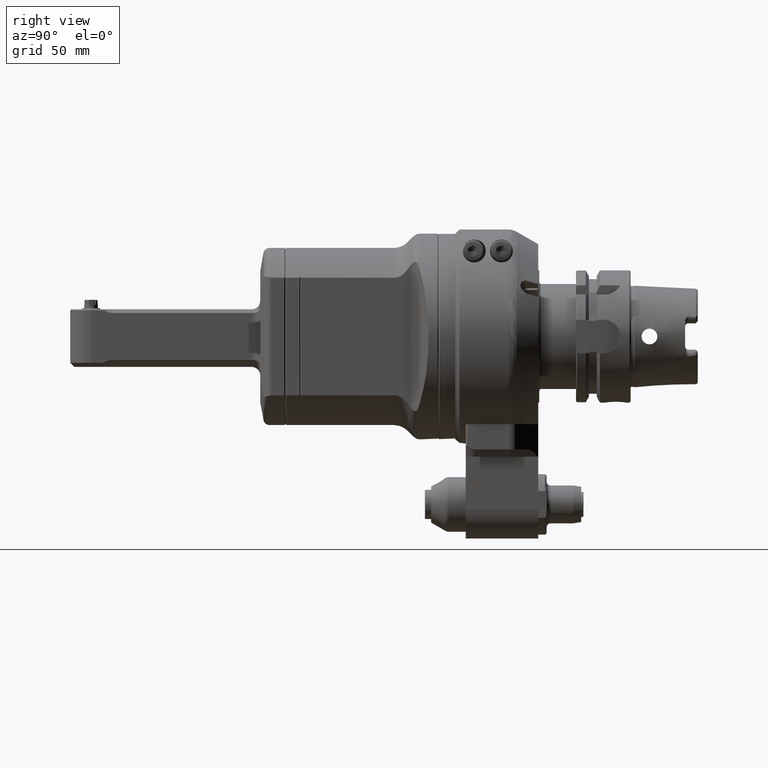
[diagram: clean part render]
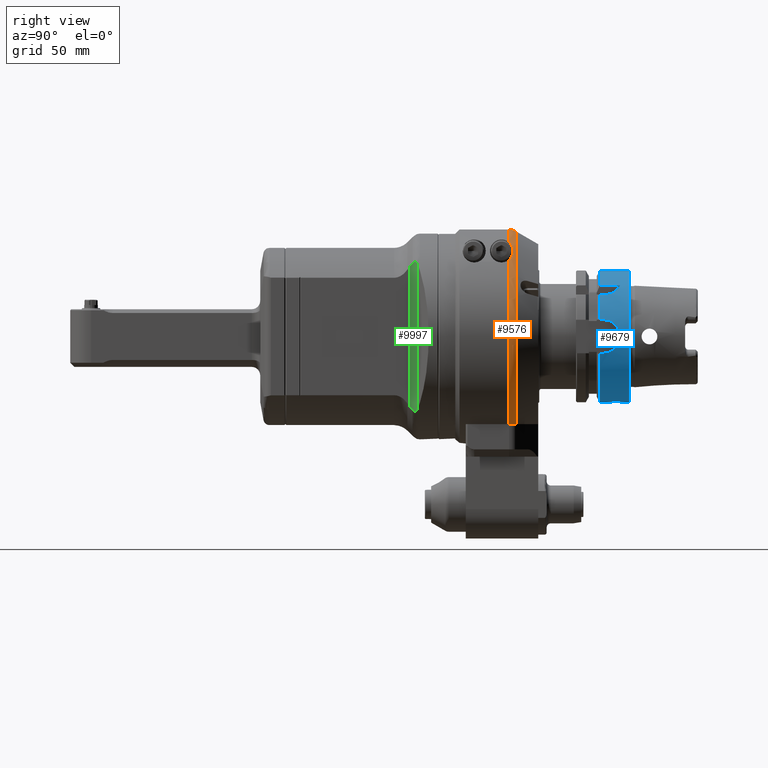
[diagram: same view with three faces highlighted in distinct colors, each labeled with its STEP entity id]
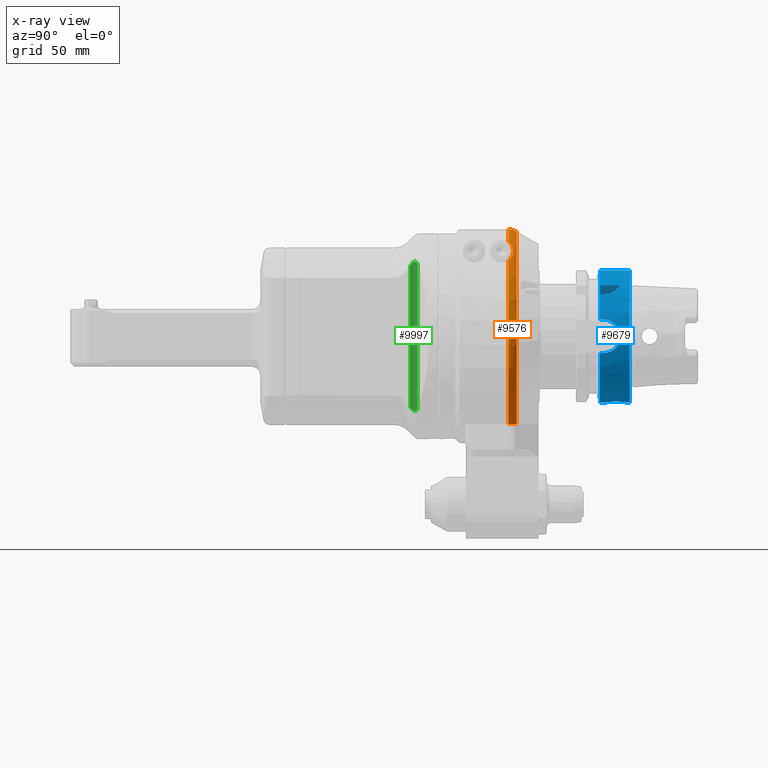
[diagram: x-ray of the same camera — body ghosted, the three highlighted faces saturated]
A machine part, right view with three faces highlighted in distinct colors.
The next image is the same camera in x-ray (body ghosted, the three faces saturated) — at least one of them is partly hidden behind the body in this view.
Their STEP definitions:

[orange] entity #9576 — the highlighted toroidal blend (fillet) surface has major radius 43 mm and minor (blend) radius 8 mm.
#251=TOROIDAL_SURFACE('',#10296,43.,8.);
#898=FACE_OUTER_BOUND('',#1478,.T.);
#1478=EDGE_LOOP('',(#6650,#6651,#6652,#6653,#6654,#6655));
#2095=CIRCLE('',#10250,51.);
#2096=CIRCLE('',#10251,51.);
#2117=CIRCLE('',#10293,49.92820323028);
#2545=B_SPLINE_CURVE_WITH_KNOTS('',3,(#14117,#14118,#14119,#14120,#14121,
#14122,#14123,#14124,#14125,#14126),.UNSPECIFIED.,.F.,.F.,(4,2,2,2,4),(-9.68559804021147,
-9.63577634006454,-9.4843525606202,-9.37005770955715,-9.2557628584941),
 .UNSPECIFIED.);
#2560=B_SPLINE_CURVE_WITH_KNOTS('',3,(#14436,#14437,#14438,#14439,#14440,
#14441,#14442,#14443),.UNSPECIFIED.,.F.,.F.,(4,2,2,4),(4.34441023881693,
4.44441523838835,4.59248867498487,4.74056211158139),.UNSPECIFIED.);
#2563=B_SPLINE_CURVE_WITH_KNOTS('',3,(#14475,#14476,#14477,#14478,#14479,
#14480,#14481,#14482,#14483,#14484,#14485,#14486,#14487,#14488,#14489,#14490),
 .UNSPECIFIED.,.F.,.F.,(4,3,3,3,3,4),(-9.34472443709596,-9.15576581563724,
-8.53592281537643,-8.19749167718029,-7.91960616501296,-7.85473194545352),
 .UNSPECIFIED.);
#4079=VERTEX_POINT('',#14082);
#4089=VERTEX_POINT('',#14113);
#4094=VERTEX_POINT('',#14137);
#4096=VERTEX_POINT('',#14146);
#4097=VERTEX_POINT('',#14173);
#4137=VERTEX_POINT('',#14424);
#5047=EDGE_CURVE('',#4089,#4079,#2545,.T.);
#5053=EDGE_CURVE('',#4094,#4079,#2095,.T.);
#5056=EDGE_CURVE('',#4097,#4096,#2096,.T.);
#5119=EDGE_CURVE('',#4137,#4097,#2560,.T.);
#5122=EDGE_CURVE('',#4089,#4137,#2117,.T.);
#5127=EDGE_CURVE('',#4096,#4094,#2563,.T.);
#6650=ORIENTED_EDGE('',*,*,#5122,.T.);
#6651=ORIENTED_EDGE('',*,*,#5119,.T.);
#6652=ORIENTED_EDGE('',*,*,#5056,.T.);
#6653=ORIENTED_EDGE('',*,*,#5127,.T.);
#6654=ORIENTED_EDGE('',*,*,#5053,.T.);
#6655=ORIENTED_EDGE('',*,*,#5047,.F.);
#9576=ADVANCED_FACE('',(#898),#251,.T.);
#10250=AXIS2_PLACEMENT_3D('',#14138,#11324,#11325);
#10251=AXIS2_PLACEMENT_3D('',#14174,#11326,#11327);
#10293=AXIS2_PLACEMENT_3D('',#14449,#11440,#11441);
#10296=AXIS2_PLACEMENT_3D('',#14474,#11446,#11447);
#11324=DIRECTION('center_axis',(0.,1.,0.));
#11325=DIRECTION('ref_axis',(0.702983781088798,0.,0.711205879844998));
#11326=DIRECTION('center_axis',(0.,1.,0.));
#11327=DIRECTION('ref_axis',(0.0294117647058804,0.,0.999567380468613));
#11440=DIRECTION('center_axis',(0.,-1.,0.));
#11441=DIRECTION('ref_axis',(0.548423503116412,0.,-0.836200730225418));
#11446=DIRECTION('center_axis',(0.,-1.,0.));
#11447=DIRECTION('ref_axis',(0.,0.,1.));
#14082=CARTESIAN_POINT('',(29.29057015492,25.23205080757,-41.75));
#14113=CARTESIAN_POINT('',(27.38180011986,29.23205080757,-41.75));
#14117=CARTESIAN_POINT('Ctrl Pts',(27.3818001198576,29.2320508075675,-41.75));
#14118=CARTESIAN_POINT('Ctrl Pts',(27.5118698927609,29.1084978721799,-41.75));
#14119=CARTESIAN_POINT('Ctrl Pts',(27.63883358715,28.9796012581369,-41.75));
#14120=CARTESIAN_POINT('Ctrl Pts',(28.1311886381695,28.4412749376929,-41.75));
#14121=CARTESIAN_POINT('Ctrl Pts',(28.4521983127449,27.9932266664163,-41.75));
#14122=CARTESIAN_POINT('Ctrl Pts',(28.8694287521605,27.2119237728328,-41.75));
#14123=CARTESIAN_POINT('Ctrl Pts',(29.0288082766981,26.8258618631201,-41.75));
#14124=CARTESIAN_POINT('Ctrl Pts',(29.2396724058848,26.0264941442551,-41.75));
#14125=CARTESIAN_POINT('Ctrl Pts',(29.290570154915,25.6130336444468,-41.75));
#14126=CARTESIAN_POINT('Ctrl Pts',(29.290570154915,25.23205080757,-41.75));
#14137=CARTESIAN_POINT('',(35.85217283553,25.23205080757,36.27149987209));
#14138=CARTESIAN_POINT('Origin',(0.,25.23205080757,0.));
#14146=CARTESIAN_POINT('',(23.67505525733,25.23205080757,45.1718026933));
#14173=CARTESIAN_POINT('',(1.499999980309,25.2320508231036,50.9779364044793));
#14174=CARTESIAN_POINT('Origin',(0.,25.23205080757,0.));
#14424=CARTESIAN_POINT('',(1.50000006858959,29.2320587089715,49.9056612221311));
#14436=CARTESIAN_POINT('Ctrl Pts',(1.5,29.2320587100669,49.9056612240274));
#14437=CARTESIAN_POINT('Ctrl Pts',(1.5,28.9199628642827,50.0859316928166));
#14438=CARTESIAN_POINT('Ctrl Pts',(1.5,28.6009646113261,50.2413262775005));
#14439=CARTESIAN_POINT('Ctrl Pts',(1.5,27.8370100654999,50.5578441661684));
#14440=CARTESIAN_POINT('Ctrl Pts',(1.5,27.3203684112507,50.7191785472564));
#14441=CARTESIAN_POINT('Ctrl Pts',(1.5,26.2646778846743,50.9292248693063));
#14442=CARTESIAN_POINT('Ctrl Pts',(1.5,25.7256289314938,50.9779364038993));
#14443=CARTESIAN_POINT('Ctrl Pts',(1.5,25.23205080757,50.9779364038993));
#14449=CARTESIAN_POINT('Origin',(0.,29.23205080757,0.));
#14474=CARTESIAN_POINT('Origin',(0.,25.23205080757,0.));
#14475=CARTESIAN_POINT('Ctrl Pts',(23.6750552573282,25.2320508075727,45.1718026933004));
#14476=CARTESIAN_POINT('Ctrl Pts',(24.1931832058652,25.6059523067419,44.9002459459358));
#14477=CARTESIAN_POINT('Ctrl Pts',(24.7188029255043,25.9420066961405,44.5838219388063));
#14478=CARTESIAN_POINT('Ctrl Pts',(25.2564932996337,26.2317635357589,44.2347948006083));
#14479=CARTESIAN_POINT('Ctrl Pts',(27.0202848225547,27.1822560162222,43.0898773216229));
#14480=CARTESIAN_POINT('Ctrl Pts',(28.8794189915696,27.59137352447,41.6682943531785));
#14481=CARTESIAN_POINT('Ctrl Pts',(30.7375607372457,27.4830876369281,40.2906640836256));
#14482=CARTESIAN_POINT('Ctrl Pts',(31.7520967175735,27.4239640908754,39.5384849351282));
#14483=CARTESIAN_POINT('Ctrl Pts',(32.792654695621,27.2001167152264,38.766612129063));
#14484=CARTESIAN_POINT('Ctrl Pts',(33.6844936512154,26.8239051275729,38.0796938038265));
#14485=CARTESIAN_POINT('Ctrl Pts',(34.4167818391968,26.5149981213335,37.5156657665635));
#14486=CARTESIAN_POINT('Ctrl Pts',(35.0318289883247,26.1276341386836,37.0238735560993));
#14487=CARTESIAN_POINT('Ctrl Pts',(35.5266834858289,25.6160859153085,36.5775081079162));
#14488=CARTESIAN_POINT('Ctrl Pts',(35.6422105569262,25.4966615829652,36.4733011276266));
#14489=CARTESIAN_POINT('Ctrl Pts',(35.7518651548587,25.3685659302862,36.370647917166));
#14490=CARTESIAN_POINT('Ctrl Pts',(35.8521728355289,25.2320508075659,36.2714998720946));

[blue] entity #9679 — the highlighted cylindrical surface (bore or boss wall) has radius 31.5 mm, axis along (0, 1, 0).
#1001=FACE_OUTER_BOUND('',#1591,.T.);
#1591=EDGE_LOOP('',(#7187,#7188,#7189,#7190,#7191,#7192,#7193,#7194,#7195,
#7196,#7197,#7198,#7199,#7200,#7201,#7202,#7203,#7204,#7205,#7206,#7207,
#7208,#7209,#7210,#7211));
#2183=CIRCLE('',#10463,31.5);
#2184=CIRCLE('',#10464,31.5);
#2185=CIRCLE('',#10465,31.5);
#2186=CIRCLE('',#10466,31.5);
#2187=CIRCLE('',#10467,31.5);
#2188=CIRCLE('',#10468,31.5);
#2189=CIRCLE('',#10469,31.5);
#2570=B_SPLINE_CURVE_WITH_KNOTS('',3,(#15217,#15218,#15219,#15220,#15221,
#15222,#15223,#15224,#15225,#15226,#15227,#15228,#15229,#15230,#15231,#15232,
#15233,#15234),.UNSPECIFIED.,.F.,.F.,(4,2,2,2,2,2,2,2,4),(0.,0.302805879979317,
0.605611759958634,0.908372461246501,1.21113316253437,1.51389386382223,1.8166545651101,
2.11946044508942,2.42226632506873),.UNSPECIFIED.);
#2572=B_SPLINE_CURVE_WITH_KNOTS('',3,(#15258,#15259,#15260,#15261,#15262,
#15263,#15264,#15265,#15266,#15267),.UNSPECIFIED.,.F.,.F.,(4,2,2,2,4),(-0.754746505200737,
-0.56606194688798,-0.377377388575223,-0.188688694287612,0.),
 .UNSPECIFIED.);
#2573=B_SPLINE_CURVE_WITH_KNOTS('',3,(#15269,#15270,#15271,#15272,#15273,
#15274,#15275,#15276,#15277,#15278),.UNSPECIFIED.,.F.,.F.,(4,2,2,2,4),(0.,
0.188688694287612,0.377377388575223,0.56606194688798,0.754746505200737),
 .UNSPECIFIED.);
#2574=B_SPLINE_CURVE_WITH_KNOTS('',3,(#15286,#15287,#15288,#15289,#15290,
#15291,#15292,#15293,#15294,#15295),.UNSPECIFIED.,.F.,.F.,(4,2,2,2,4),(1.20927420824098,
1.5131742975437,1.81707438684643,2.12000449915965,2.42293461147287),
 .UNSPECIFIED.);
#2575=B_SPLINE_CURVE_WITH_KNOTS('',3,(#15299,#15300,#15301,#15302,#15303,
#15304,#15305,#15306,#15307,#15308),.UNSPECIFIED.,.F.,.F.,(4,2,2,2,4),(0.,
0.302930112313218,0.605860224626436,0.909760313929164,1.21366040323189),
 .UNSPECIFIED.);
#2576=B_SPLINE_CURVE_WITH_KNOTS('',3,(#15316,#15317,#15318,#15319,#15320,
#15321,#15322,#15323,#15324,#15325,#15326,#15327),.UNSPECIFIED.,.F.,.F.,
(4,2,2,2,2,4),(-6.05874474967023,-5.78688497894,-5.51502520820976,-5.37221974243489,
-5.22941427666002,-5.09609706558246),.UNSPECIFIED.);
#2577=B_SPLINE_CURVE_WITH_KNOTS('',3,(#15333,#15334,#15335,#15336,#15337,
#15338,#15339,#15340,#15341,#15342),.UNSPECIFIED.,.F.,.F.,(4,2,2,2,4),(0.754746505200737,
0.943431063513494,1.13211562182625,1.32080431611386,1.50949301040147),
 .UNSPECIFIED.);
#2578=B_SPLINE_CURVE_WITH_KNOTS('',3,(#15343,#15344,#15345,#15346,#15347,
#15348,#15349,#15350,#15351,#15352),.UNSPECIFIED.,.F.,.F.,(4,2,2,2,4),(-1.50949301040147,
-1.32080431611386,-1.13211562182625,-0.943431063513494,-0.754746505200737),
 .UNSPECIFIED.);
#2898=LINE('',#15214,#3570);
#2900=LINE('',#15238,#3572);
#2902=LINE('',#15256,#3574);
#2903=LINE('',#15280,#3575);
#2904=LINE('',#15284,#3576);
#2905=LINE('',#15310,#3577);
#2906=LINE('',#15314,#3578);
#2907=LINE('',#15329,#3579);
#3570=VECTOR('',#11903,1.62249829666703);
#3572=VECTOR('',#11909,1.62249829672203);
#3574=VECTOR('',#11915,31.5);
#3575=VECTOR('',#11916,31.5);
#3576=VECTOR('',#11919,1.62249751393706);
#3577=VECTOR('',#11922,1.62249751393706);
#3578=VECTOR('',#11925,10.);
#3579=VECTOR('',#11926,10.);
#4313=VERTEX_POINT('',#15199);
#4315=VERTEX_POINT('',#15203);
#4316=VERTEX_POINT('',#15216);
#4317=VERTEX_POINT('',#15237);
#4319=VERTEX_POINT('',#15252);
#4320=VERTEX_POINT('',#15253);
#4321=VERTEX_POINT('',#15255);
#4322=VERTEX_POINT('',#15257);
#4323=VERTEX_POINT('',#15268);
#4324=VERTEX_POINT('',#15279);
#4325=VERTEX_POINT('',#15281);
#4326=VERTEX_POINT('',#15283);
#4327=VERTEX_POINT('',#15285);
#4328=VERTEX_POINT('',#15296);
#4329=VERTEX_POINT('',#15298);
#4330=VERTEX_POINT('',#15309);
#4331=VERTEX_POINT('',#15311);
#4332=VERTEX_POINT('',#15313);
#4333=VERTEX_POINT('',#15315);
#4334=VERTEX_POINT('',#15328);
#4335=VERTEX_POINT('',#15332);
#5385=EDGE_CURVE('',#4313,#4315,#2898,.T.);
#5386=EDGE_CURVE('',#4313,#4316,#2570,.T.);
#5388=EDGE_CURVE('',#4317,#4316,#2900,.T.);
#5391=EDGE_CURVE('',#4319,#4320,#2183,.T.);
#5392=EDGE_CURVE('',#4319,#4321,#2902,.T.);
#5393=EDGE_CURVE('',#4321,#4322,#2572,.T.);
#5394=EDGE_CURVE('',#4322,#4323,#2573,.T.);
#5395=EDGE_CURVE('',#4323,#4324,#2903,.T.);
#5396=EDGE_CURVE('',#4325,#4324,#2184,.T.);
#5397=EDGE_CURVE('',#4325,#4326,#2904,.T.);
#5398=EDGE_CURVE('',#4327,#4326,#2574,.T.);
#5399=EDGE_CURVE('',#4328,#4327,#2185,.T.);
#5400=EDGE_CURVE('',#4329,#4328,#2575,.T.);
#5401=EDGE_CURVE('',#4329,#4330,#2905,.T.);
#5402=EDGE_CURVE('',#4331,#4330,#2186,.T.);
#5403=EDGE_CURVE('',#4331,#4332,#2906,.T.);
#5404=EDGE_CURVE('',#4333,#4332,#2576,.T.);
#5405=EDGE_CURVE('',#4333,#4334,#2907,.T.);
#5406=EDGE_CURVE('',#4317,#4334,#2187,.T.);
#5407=EDGE_CURVE('',#4324,#4315,#2188,.T.);
#5408=EDGE_CURVE('',#4323,#4335,#2577,.T.);
#5409=EDGE_CURVE('',#4335,#4321,#2578,.T.);
#5410=EDGE_CURVE('',#4320,#4319,#2189,.T.);
#7187=ORIENTED_EDGE('',*,*,#5391,.F.);
#7188=ORIENTED_EDGE('',*,*,#5392,.T.);
#7189=ORIENTED_EDGE('',*,*,#5393,.T.);
#7190=ORIENTED_EDGE('',*,*,#5394,.T.);
#7191=ORIENTED_EDGE('',*,*,#5395,.T.);
#7192=ORIENTED_EDGE('',*,*,#5396,.F.);
#7193=ORIENTED_EDGE('',*,*,#5397,.T.);
#7194=ORIENTED_EDGE('',*,*,#5398,.F.);
#7195=ORIENTED_EDGE('',*,*,#5399,.F.);
#7196=ORIENTED_EDGE('',*,*,#5400,.F.);
#7197=ORIENTED_EDGE('',*,*,#5401,.T.);
#7198=ORIENTED_EDGE('',*,*,#5402,.F.);
#7199=ORIENTED_EDGE('',*,*,#5403,.T.);
#7200=ORIENTED_EDGE('',*,*,#5404,.F.);
#7201=ORIENTED_EDGE('',*,*,#5405,.T.);
#7202=ORIENTED_EDGE('',*,*,#5406,.F.);
#7203=ORIENTED_EDGE('',*,*,#5388,.T.);
#7204=ORIENTED_EDGE('',*,*,#5386,.F.);
#7205=ORIENTED_EDGE('',*,*,#5385,.T.);
#7206=ORIENTED_EDGE('',*,*,#5407,.F.);
#7207=ORIENTED_EDGE('',*,*,#5395,.F.);
#7208=ORIENTED_EDGE('',*,*,#5408,.T.);
#7209=ORIENTED_EDGE('',*,*,#5409,.T.);
#7210=ORIENTED_EDGE('',*,*,#5392,.F.);
#7211=ORIENTED_EDGE('',*,*,#5410,.F.);
#9430=CYLINDRICAL_SURFACE('',#10462,31.5);
#9679=ADVANCED_FACE('',(#1001),#9430,.T.);
#10462=AXIS2_PLACEMENT_3D('',#15251,#11911,#11912);
#10463=AXIS2_PLACEMENT_3D('',#15254,#11913,#11914);
#10464=AXIS2_PLACEMENT_3D('',#15282,#11917,#11918);
#10465=AXIS2_PLACEMENT_3D('',#15297,#11920,#11921);
#10466=AXIS2_PLACEMENT_3D('',#15312,#11923,#11924);
#10467=AXIS2_PLACEMENT_3D('',#15330,#11927,#11928);
#10468=AXIS2_PLACEMENT_3D('',#15331,#11929,#11930);
#10469=AXIS2_PLACEMENT_3D('',#15353,#11931,#11932);
#11903=DIRECTION('',(-4.68592609280692E-8,-0.999999999999983,-1.78458808967197E-7));
#11909=DIRECTION('',(4.68583040466692E-8,0.999999999999983,-1.78455147855797E-7));
#11911=DIRECTION('center_axis',(0.,1.,0.));
#11912=DIRECTION('ref_axis',(0.,0.,1.));
#11913=DIRECTION('center_axis',(0.,1.,0.));
#11914=DIRECTION('ref_axis',(-0.707106781186547,0.,-0.707106781186547));
#11915=DIRECTION('',(0.,-1.,0.));
#11916=DIRECTION('',(0.,-1.,0.));
#11917=DIRECTION('center_axis',(0.,-1.,0.));
#11918=DIRECTION('ref_axis',(-0.958314847499905,0.,-0.285714285714301));
#11919=DIRECTION('',(-7.77212104206971E-8,0.999999999999963,2.6068480881039E-7));
#11920=DIRECTION('center_axis',(0.,-1.,0.));
#11921=DIRECTION('ref_axis',(-0.999495967709915,0.,0.0317460317460305));
#11922=DIRECTION('',(7.77212082310371E-8,-0.999999999999963,2.6068480005169E-7));
#11923=DIRECTION('center_axis',(0.,-1.,0.));
#11924=DIRECTION('ref_axis',(0.634920634920608,0.,0.77257736658021));
#11925=DIRECTION('',(0.,1.,0.));
#11926=DIRECTION('',(0.,-1.,0.));
#11927=DIRECTION('center_axis',(0.,-1.,0.));
#11928=DIRECTION('ref_axis',(0.967212554703614,0.,0.253968253968304));
#11929=DIRECTION('center_axis',(0.,-1.,0.));
#11930=DIRECTION('ref_axis',(-0.958314847499905,0.,-0.285714285714301));
#11931=DIRECTION('center_axis',(0.,1.,0.));
#11932=DIRECTION('ref_axis',(-0.707106781186547,0.,-0.707106781186547));
#15199=CARTESIAN_POINT('',(30.46719547316,70.5,-8.));
#15203=CARTESIAN_POINT('',(30.4671953763624,68.8774990892394,-8.00000043157662));
#15214=CARTESIAN_POINT('',(30.46719547316,70.5,-8.));
#15216=CARTESIAN_POINT('',(30.46719547316,70.5,8.));
#15217=CARTESIAN_POINT('Ctrl Pts',(30.4671954731643,70.5,-8.));
#15218=CARTESIAN_POINT('Ctrl Pts',(30.4671954731643,71.5093529332644,-8.));
#15219=CARTESIAN_POINT('Ctrl Pts',(30.5225803085525,72.5827924069832,-7.79737202490167));
#15220=CARTESIAN_POINT('Ctrl Pts',(30.719895002943,74.552416006682,-6.97961067526075));
#15221=CARTESIAN_POINT('Ctrl Pts',(30.8586830127239,75.4490067762956,-6.36470172268915));
#15222=CARTESIAN_POINT('Ctrl Pts',(31.1170994373341,76.8645961117195,-4.94911238726522));
#15223=CARTESIAN_POINT('Ctrl Pts',(31.2539072689014,77.4795873698469,-4.05247770930662));
#15224=CARTESIAN_POINT('Ctrl Pts',(31.4466478906396,78.297408851126,-2.08269813865027));
#15225=CARTESIAN_POINT('Ctrl Pts',(31.5,78.5,-1.00920233762622));
#15226=CARTESIAN_POINT('Ctrl Pts',(31.5,78.5,1.00920233762622));
#15227=CARTESIAN_POINT('Ctrl Pts',(31.4466478906396,78.297408851126,2.08269813865026));
#15228=CARTESIAN_POINT('Ctrl Pts',(31.2539072689014,77.4795873698469,4.05247770930661));
#15229=CARTESIAN_POINT('Ctrl Pts',(31.1170994373341,76.8645961117195,4.94911238726522));
#15230=CARTESIAN_POINT('Ctrl Pts',(30.8586830127239,75.4490067762956,6.36470172268915));
#15231=CARTESIAN_POINT('Ctrl Pts',(30.719895002943,74.552416006682,6.97961067526075));
#15232=CARTESIAN_POINT('Ctrl Pts',(30.5225803085525,72.5827924069832,7.79737202490167));
#15233=CARTESIAN_POINT('Ctrl Pts',(30.4671954731643,71.5093529332644,8.));
#15234=CARTESIAN_POINT('Ctrl Pts',(30.4671954731643,70.5,8.));
#15237=CARTESIAN_POINT('',(30.467195376368,68.87749908924,8.00000043156748));
#15238=CARTESIAN_POINT('',(30.46719539714,68.87750170328,8.000000289543));
#15251=CARTESIAN_POINT('Origin',(1.347113091385E-14,55.4,0.));
#15252=CARTESIAN_POINT('',(9.61349349653584E-15,83.,-31.5));
#15253=CARTESIAN_POINT('',(9.61349349653584E-15,83.,31.5));
#15254=CARTESIAN_POINT('Origin',(1.347113091385E-14,83.,0.));
#15255=CARTESIAN_POINT('',(1.18150295912142E-14,81.5,-31.5));
#15256=CARTESIAN_POINT('',(9.61349349653584E-15,55.4,-31.5));
#15257=CARTESIAN_POINT('',(-4.99999999999998,76.5,-31.100643080168));
#15258=CARTESIAN_POINT('Ctrl Pts',(1.38777878078145E-14,81.5,-31.5));
#15259=CARTESIAN_POINT('Ctrl Pts',(-0.628948527709176,81.5,-31.5));
#15260=CARTESIAN_POINT('Ctrl Pts',(-1.29909839144707,81.3740869887941,-31.4792463697936));
#15261=CARTESIAN_POINT('Ctrl Pts',(-2.53068619255778,80.8634857465146,-31.4042391414288));
#15262=CARTESIAN_POINT('Ctrl Pts',(-3.09221190413347,80.478855907732,-31.3510329557602));
#15263=CARTESIAN_POINT('Ctrl Pts',(-3.9788656253722,79.5922021864933,-31.2508828501623));
#15264=CARTESIAN_POINT('Ctrl Pts',(-4.36348784122735,79.0306806569904,-31.1973810209855));
#15265=CARTESIAN_POINT('Ctrl Pts',(-4.87408354368812,77.799107184208,-31.1216953112949));
#15266=CARTESIAN_POINT('Ctrl Pts',(-4.99999999999998,77.1289623142921,-31.100643080168));
#15267=CARTESIAN_POINT('Ctrl Pts',(-4.99999999999998,76.5,-31.100643080168));
#15268=CARTESIAN_POINT('',(1.14680848960189E-14,71.5,-31.5));
#15269=CARTESIAN_POINT('Ctrl Pts',(-4.99999999999999,76.5,-31.100643080168));
#15270=CARTESIAN_POINT('Ctrl Pts',(-4.99999999999999,75.871037685708,-31.100643080168));
#15271=CARTESIAN_POINT('Ctrl Pts',(-4.87408354368812,75.200892815792,-31.1216953112949));
#15272=CARTESIAN_POINT('Ctrl Pts',(-4.36348784122735,73.9693193430096,-31.1973810209855));
#15273=CARTESIAN_POINT('Ctrl Pts',(-3.9788656253722,73.4077978135067,-31.2508828501623));
#15274=CARTESIAN_POINT('Ctrl Pts',(-3.09221190413347,72.521144092268,-31.3510329557602));
#15275=CARTESIAN_POINT('Ctrl Pts',(-2.53068619255778,72.1365142534854,-31.4042391414288));
#15276=CARTESIAN_POINT('Ctrl Pts',(-1.29909839144707,71.6259130112059,-31.4792463697936));
#15277=CARTESIAN_POINT('Ctrl Pts',(-0.628948527709176,71.5,-31.5));
#15278=CARTESIAN_POINT('Ctrl Pts',(1.36002320516582E-14,71.5,-31.5));
#15279=CARTESIAN_POINT('',(9.61349349653584E-15,68.87749907476,-31.5));
#15280=CARTESIAN_POINT('',(9.61349349653584E-15,55.4,-31.5));
#15281=CARTESIAN_POINT('',(-30.1869175352187,68.8774990975238,-9.00000062995455));
#15282=CARTESIAN_POINT('Origin',(1.347113091385E-14,68.87749907476,0.));
#15283=CARTESIAN_POINT('',(-30.18691769625,70.5,-9.));
#15284=CARTESIAN_POINT('',(-30.18691757014,68.87750248606,-9.00000042296));
#15285=CARTESIAN_POINT('',(-31.48412298286,78.5,-1.));
#15286=CARTESIAN_POINT('Ctrl Pts',(-31.4841229828623,78.5,-1.));
#15287=CARTESIAN_POINT('Ctrl Pts',(-31.4519642432536,78.5,-2.01248971281588));
#15288=CARTESIAN_POINT('Ctrl Pts',(-31.3640631381934,78.2962266693542,-3.08756640398172));
#15289=CARTESIAN_POINT('Ctrl Pts',(-31.1070804719497,77.4762989744496,-5.05836608044729));
#15290=CARTESIAN_POINT('Ctrl Pts',(-30.9405445582003,76.8604425465894,-5.95454409907419));
#15291=CARTESIAN_POINT('Ctrl Pts',(-30.6348764237341,75.4452750671682,-7.3671500962837));
#15292=CARTESIAN_POINT('Ctrl Pts',(-30.4752177477269,74.5503357784117,-7.98063403850822));
#15293=CARTESIAN_POINT('Ctrl Pts',(-30.2496070227108,72.5828259339463,-8.79719825889174));
#15294=CARTESIAN_POINT('Ctrl Pts',(-30.1869176962471,71.5097670410441,-9.));
#15295=CARTESIAN_POINT('Ctrl Pts',(-30.1869176962471,70.5,-9.));
#15296=CARTESIAN_POINT('',(-31.48412298286,78.5,1.));
#15297=CARTESIAN_POINT('Origin',(1.347113091385E-14,78.5,0.));
#15298=CARTESIAN_POINT('',(-30.18691769625,70.5,9.));
#15299=CARTESIAN_POINT('Ctrl Pts',(-30.1869176962471,70.5,9.));
#15300=CARTESIAN_POINT('Ctrl Pts',(-30.1869176962471,71.5097670410441,9.));
#15301=CARTESIAN_POINT('Ctrl Pts',(-30.2496070227108,72.5828259339462,8.79719825889175));
#15302=CARTESIAN_POINT('Ctrl Pts',(-30.4752177477269,74.5503357784117,7.98063403850822));
#15303=CARTESIAN_POINT('Ctrl Pts',(-30.6348764237341,75.4452750671682,7.36715009628369));
#15304=CARTESIAN_POINT('Ctrl Pts',(-30.9405445582003,76.8604425465894,5.95454409907418));
#15305=CARTESIAN_POINT('Ctrl Pts',(-31.1070804719497,77.4762989744496,5.05836608044729));
#15306=CARTESIAN_POINT('Ctrl Pts',(-31.3640631381934,78.2962266693542,3.08756640398171));
#15307=CARTESIAN_POINT('Ctrl Pts',(-31.4519642432536,78.5,2.01248971281587));
#15308=CARTESIAN_POINT('Ctrl Pts',(-31.4841229828623,78.5,0.999999999999998));
#15309=CARTESIAN_POINT('',(-30.1869175352224,68.8774990975246,9.00000062995427));
#15310=CARTESIAN_POINT('',(-30.18691769625,70.5,9.));
#15311=CARTESIAN_POINT('',(19.9999999996528,68.8774990752991,24.3361870480634));
#15312=CARTESIAN_POINT('Origin',(1.347113091385E-14,68.87749907476,0.));
#15313=CARTESIAN_POINT('',(20.,78.5,24.33618704728));
#15314=CARTESIAN_POINT('',(20.,55.4,24.3361870472759));
#15315=CARTESIAN_POINT('',(24.33618704728,71.38828609634,20.));
#15316=CARTESIAN_POINT('Ctrl Pts',(24.3361870472759,71.38828609634,20.));
#15317=CARTESIAN_POINT('Ctrl Pts',(24.3361870472759,72.2944853321075,20.));
#15318=CARTESIAN_POINT('Ctrl Pts',(24.2030210294625,73.2485903152513,20.1651590264306));
#15319=CARTESIAN_POINT('Ctrl Pts',(23.6671236275841,74.9776040258777,20.791516259953));
#15320=CARTESIAN_POINT('Ctrl Pts',(23.2621247516531,75.7527099808559,21.2502254786035));
#15321=CARTESIAN_POINT('Ctrl Pts',(22.5572734459409,76.6838450530083,21.9896152318442));
#15322=CARTESIAN_POINT('Ctrl Pts',(22.2670351257637,77.0017410524538,22.2850045135992));
#15323=CARTESIAN_POINT('Ctrl Pts',(21.6380881931739,77.5626809031602,22.8961878826721));
#15324=CARTESIAN_POINT('Ctrl Pts',(21.2994440978138,77.8063698226692,23.211456037969));
#15325=CARTESIAN_POINT('Ctrl Pts',(20.6739705995174,78.1861703961874,23.7697454006925));
#15326=CARTESIAN_POINT('Ctrl Pts',(20.3466742532987,78.3532229798908,24.0512827172548));
#15327=CARTESIAN_POINT('Ctrl Pts',(19.9999999999972,78.499999999997,24.3361870472782));
#15328=CARTESIAN_POINT('',(24.3361870480639,68.8774990752995,19.9999999996526));
#15329=CARTESIAN_POINT('',(24.3361870472759,55.4,20.));
#15330=CARTESIAN_POINT('Origin',(1.347113091385E-14,68.87749907476,0.));
#15331=CARTESIAN_POINT('Origin',(1.347113091385E-14,68.87749907476,0.));
#15332=CARTESIAN_POINT('',(5.00000000000001,76.5,-31.10064308017));
#15333=CARTESIAN_POINT('Ctrl Pts',(1.47104550762833E-14,71.5,-31.5));
#15334=CARTESIAN_POINT('Ctrl Pts',(0.628948527709204,71.5,-31.5));
#15335=CARTESIAN_POINT('Ctrl Pts',(1.2990983914471,71.6259130112059,-31.4792463697936));
#15336=CARTESIAN_POINT('Ctrl Pts',(2.53068619255781,72.1365142534854,-31.4042391414288));
#15337=CARTESIAN_POINT('Ctrl Pts',(3.0922119041335,72.521144092268,-31.3510329557602));
#15338=CARTESIAN_POINT('Ctrl Pts',(3.97886562537222,73.4077978135067,-31.2508828501623));
#15339=CARTESIAN_POINT('Ctrl Pts',(4.36348784122737,73.9693193430096,-31.1973810209855));
#15340=CARTESIAN_POINT('Ctrl Pts',(4.87408354368814,75.200892815792,-31.1216953112949));
#15341=CARTESIAN_POINT('Ctrl Pts',(5.00000000000001,75.871037685708,-31.100643080168));
#15342=CARTESIAN_POINT('Ctrl Pts',(5.00000000000001,76.5,-31.100643080168));
#15343=CARTESIAN_POINT('Ctrl Pts',(5.00000000000001,76.5,-31.100643080168));
#15344=CARTESIAN_POINT('Ctrl Pts',(5.00000000000001,77.128962314292,-31.100643080168));
#15345=CARTESIAN_POINT('Ctrl Pts',(4.87408354368815,77.799107184208,-31.1216953112949));
#15346=CARTESIAN_POINT('Ctrl Pts',(4.36348784122738,79.0306806569904,-31.1973810209855));
#15347=CARTESIAN_POINT('Ctrl Pts',(3.97886562537222,79.5922021864933,-31.2508828501623));
#15348=CARTESIAN_POINT('Ctrl Pts',(3.0922119041335,80.478855907732,-31.3510329557602));
#15349=CARTESIAN_POINT('Ctrl Pts',(2.53068619255781,80.8634857465146,-31.4042391414288));
#15350=CARTESIAN_POINT('Ctrl Pts',(1.2990983914471,81.3740869887941,-31.4792463697936));
#15351=CARTESIAN_POINT('Ctrl Pts',(0.628948527709204,81.5,-31.5));
#15352=CARTESIAN_POINT('Ctrl Pts',(1.40859546249317E-14,81.5,-31.5));
#15353=CARTESIAN_POINT('Origin',(1.347113091385E-14,83.,0.));

[green] entity #9997 — the highlighted cylindrical surface (edge-blend (fillet) strip) has radius 4 mm, axis along (-0, -0, -1).
#1319=FACE_OUTER_BOUND('',#1947,.T.);
#1947=EDGE_LOOP('',(#8813,#8814,#8815,#8816,#8817,#8818));
#2691=B_SPLINE_CURVE_WITH_KNOTS('',3,(#58990,#58991,#58992,#58993,#58994,
#58995,#58996,#58997,#58998,#58999,#59000,#59001,#59002,#59003,#59004,#59005),
 .UNSPECIFIED.,.F.,.F.,(4,3,3,3,3,4),(0.,0.2,0.4,0.6,0.8,0.999999794124968),
 .UNSPECIFIED.);
#2694=B_SPLINE_CURVE_WITH_KNOTS('',3,(#59030,#59031,#59032,#59033,#59034,
#59035,#59036,#59037,#59038,#59039),.UNSPECIFIED.,.F.,.F.,(4,3,3,4),(7.1553818548813,
7.24747598999974,7.62320964298718,7.89672009950679),.UNSPECIFIED.);
#2699=B_SPLINE_CURVE_WITH_KNOTS('',3,(#59089,#59090,#59091,#59092,#59093,
#59094,#59095,#59096,#59097,#59098),.UNSPECIFIED.,.F.,.F.,(4,3,3,4),(1.25466641579625,
1.33366635334958,1.59877209448939,1.92070516616804),.UNSPECIFIED.);
#2700=B_SPLINE_CURVE_WITH_KNOTS('',3,(#59100,#59101,#59102,#59103,#59104,
#59105,#59106,#59107,#59108,#59109,#59110,#59111,#59112,#59113,#59114,#59115),
 .UNSPECIFIED.,.F.,.F.,(4,3,3,3,3,4),(9.59352139122036E-7,0.2,0.4,0.6,0.8,
1.),.UNSPECIFIED.);
#3241=LINE('',#58937,#3913);
#3255=LINE('',#59230,#3927);
#3913=VECTOR('',#13334,66.84160300858);
#3927=VECTOR('',#13452,69.01788791009);
#4827=VERTEX_POINT('',#58932);
#4828=VERTEX_POINT('',#58936);
#4838=VERTEX_POINT('',#58971);
#4844=VERTEX_POINT('',#59029);
#4851=VERTEX_POINT('',#59063);
#4853=VERTEX_POINT('',#59082);
#6157=EDGE_CURVE('',#4828,#4827,#3241,.T.);
#6171=EDGE_CURVE('',#4838,#4828,#2691,.T.);
#6176=EDGE_CURVE('',#4844,#4838,#2694,.T.);
#6190=EDGE_CURVE('',#4851,#4853,#2699,.T.);
#6191=EDGE_CURVE('',#4827,#4851,#2700,.T.);
#6220=EDGE_CURVE('',#4844,#4853,#3255,.T.);
#8813=ORIENTED_EDGE('',*,*,#6176,.T.);
#8814=ORIENTED_EDGE('',*,*,#6171,.T.);
#8815=ORIENTED_EDGE('',*,*,#6157,.T.);
#8816=ORIENTED_EDGE('',*,*,#6191,.T.);
#8817=ORIENTED_EDGE('',*,*,#6190,.T.);
#8818=ORIENTED_EDGE('',*,*,#6220,.F.);
#9511=CYLINDRICAL_SURFACE('',#11055,4.);
#9997=ADVANCED_FACE('',(#1319),#9511,.F.);
#11055=AXIS2_PLACEMENT_3D('',#59229,#13450,#13451);
#13334=DIRECTION('',(-1.533572553029E-12,1.,3.374146633328E-12));
#13450=DIRECTION('center_axis',(0.,1.,0.));
#13451=DIRECTION('ref_axis',(0.,0.,-1.));
#13452=DIRECTION('',(0.,1.,0.));
#58932=CARTESIAN_POINT('',(9.73152227524531,33.4208045046687,32.0000006443278));
#58936=CARTESIAN_POINT('',(9.73152281962003,-33.4208027084784,32.0000011272698));
#58937=CARTESIAN_POINT('',(9.731521981753,-33.42080150517,32.00000048242));
#58971=CARTESIAN_POINT('',(8.464251895864,-34.96449019495,32.20605403651));
#58990=CARTESIAN_POINT('Ctrl Pts',(8.46425189586141,-34.9644901949481,32.2060540365082));
#58991=CARTESIAN_POINT('Ctrl Pts',(8.54002567152763,-34.8848563307483,32.1807437509284));
#58992=CARTESIAN_POINT('Ctrl Pts',(8.61780320398598,-34.8007371085439,32.1572906951329));
#58993=CARTESIAN_POINT('Ctrl Pts',(8.69739868142658,-34.7120667452559,32.1359880245492));
#58994=CARTESIAN_POINT('Ctrl Pts',(8.77699415886719,-34.6233963819679,32.1146853539655));
#58995=CARTESIAN_POINT('Ctrl Pts',(8.85840766163179,-34.5301749366323,32.0955331231707));
#58996=CARTESIAN_POINT('Ctrl Pts',(8.94152463696613,-34.432256584415,32.07878796175));
#58997=CARTESIAN_POINT('Ctrl Pts',(9.02464161230047,-34.3343382321976,32.0620428003292));
#58998=CARTESIAN_POINT('Ctrl Pts',(9.10946213108216,-34.2317230247374,32.0477047569052));
#58999=CARTESIAN_POINT('Ctrl Pts',(9.19584698888427,-34.1242785539741,32.0360307686375));
#59000=CARTESIAN_POINT('Ctrl Pts',(9.28223184668638,-34.0168340832109,32.0243567803698));
#59001=CARTESIAN_POINT('Ctrl Pts',(9.37018112009566,-33.904560406156,32.0153468985115));
#59002=CARTESIAN_POINT('Ctrl Pts',(9.45953174360618,-33.7873347066308,32.0092580650817));
#59003=CARTESIAN_POINT('Ctrl Pts',(9.5488822751414,-33.6701091277748,32.0031692379197));
#59004=CARTESIAN_POINT('Ctrl Pts',(9.63963415275625,-33.5479315329025,32.0000014554529));
#59005=CARTESIAN_POINT('Ctrl Pts',(9.73152309563294,-33.4208029079813,32.0000014496947));
#59029=CARTESIAN_POINT('',(5.972751717779,-34.50894395504,34.6319194267));
#59030=CARTESIAN_POINT('Ctrl Pts',(5.97275171777826,-34.5089439550407,34.6319194267004));
#59031=CARTESIAN_POINT('Ctrl Pts',(6.02264478547084,-34.6314391294081,34.4948393498273));
#59032=CARTESIAN_POINT('Ctrl Pts',(6.08126519883513,-34.749541571942,34.3569863588148));
#59033=CARTESIAN_POINT('Ctrl Pts',(6.15006935831876,-34.8610655454434,34.2186534485951));
#59034=CARTESIAN_POINT('Ctrl Pts',(6.43078254543176,-35.3160707410017,33.6542708240298));
#59035=CARTESIAN_POINT('Ctrl Pts',(6.83692729724181,-35.6087276804309,33.1646983477227));
#59036=CARTESIAN_POINT('Ctrl Pts',(7.3569706269629,-35.5696404753567,32.7810708577846));
#59037=CARTESIAN_POINT('Ctrl Pts',(7.73552944752921,-35.5411874496058,32.5018141846807));
#59038=CARTESIAN_POINT('Ctrl Pts',(8.13789456086564,-35.3074729151278,32.3150653306731));
#59039=CARTESIAN_POINT('Ctrl Pts',(8.46425189586207,-34.9644901949494,32.2060540365062));
#59063=CARTESIAN_POINT('',(8.464251895864,34.96449019495,32.20605403651));
#59082=CARTESIAN_POINT('',(5.972751717779,34.50894395504,34.6319194267));
#59089=CARTESIAN_POINT('Ctrl Pts',(8.46425189586208,34.9644901949494,32.2060540365062));
#59090=CARTESIAN_POINT('Ctrl Pts',(8.36114034629997,35.0728544814484,32.2404958040291));
#59091=CARTESIAN_POINT('Ctrl Pts',(8.25176515095573,35.171441203025,32.2815513553324));
#59092=CARTESIAN_POINT('Ctrl Pts',(8.13385684791608,35.2578596543706,32.3329214052871));
#59093=CARTESIAN_POINT('Ctrl Pts',(7.73818352168381,35.5478602328728,32.5053075563071));
#59094=CARTESIAN_POINT('Ctrl Pts',(7.27612041210993,35.6352550242145,32.8020361892854));
#59095=CARTESIAN_POINT('Ctrl Pts',(6.91666232007668,35.5157844682075,33.1580704000271));
#59096=CARTESIAN_POINT('Ctrl Pts',(6.48015178955982,35.3707045355546,33.5904231155661));
#59097=CARTESIAN_POINT('Ctrl Pts',(6.1774820199419,35.0115884149153,34.0694275444262));
#59098=CARTESIAN_POINT('Ctrl Pts',(5.97275171777826,34.5089439550407,34.6319194267004));
#59100=CARTESIAN_POINT('Ctrl Pts',(9.7315220557643,33.420804346027,32.0000014503378));
#59101=CARTESIAN_POINT('Ctrl Pts',(9.63950613168635,33.5481086242916,32.0000014800491));
#59102=CARTESIAN_POINT('Ctrl Pts',(9.54864901057675,33.6704224294341,32.0031781014017));
#59103=CARTESIAN_POINT('Ctrl Pts',(9.45921828277659,33.7877459433713,32.0092794414854));
#59104=CARTESIAN_POINT('Ctrl Pts',(9.36978712599658,33.905070020084,32.015380810836));
#59105=CARTESIAN_POINT('Ctrl Pts',(9.28178237701402,34.0174037612173,32.0244069244606));
#59106=CARTESIAN_POINT('Ctrl Pts',(9.19536851751317,34.1248736429831,32.0360954567815));
#59107=CARTESIAN_POINT('Ctrl Pts',(9.10895465801233,34.2323435247489,32.0477839891023));
#59108=CARTESIAN_POINT('Ctrl Pts',(9.02413160960892,34.3349494888225,32.0621348876374));
#59109=CARTESIAN_POINT('Ctrl Pts',(8.94103957947617,34.4328279886229,32.0788857163828));
#59110=CARTESIAN_POINT('Ctrl Pts',(8.85794754934343,34.5307064884233,32.0956365451282));
#59111=CARTESIAN_POINT('Ctrl Pts',(8.77658646496289,34.6238574711103,32.114787254342));
#59112=CARTESIAN_POINT('Ctrl Pts',(8.69707144166451,34.7124312824217,32.1360756184066));
#59113=CARTESIAN_POINT('Ctrl Pts',(8.61755641836613,34.8010050937331,32.1573639824713));
#59114=CARTESIAN_POINT('Ctrl Pts',(8.53988737408941,34.885001673371,32.180789945641));
#59115=CARTESIAN_POINT('Ctrl Pts',(8.46425189586141,34.9644901949481,32.2060540365082));
#59229=CARTESIAN_POINT('Origin',(9.731522200923,0.,36.));
#59230=CARTESIAN_POINT('',(5.972751717779,-34.50894395504,34.6319194267));